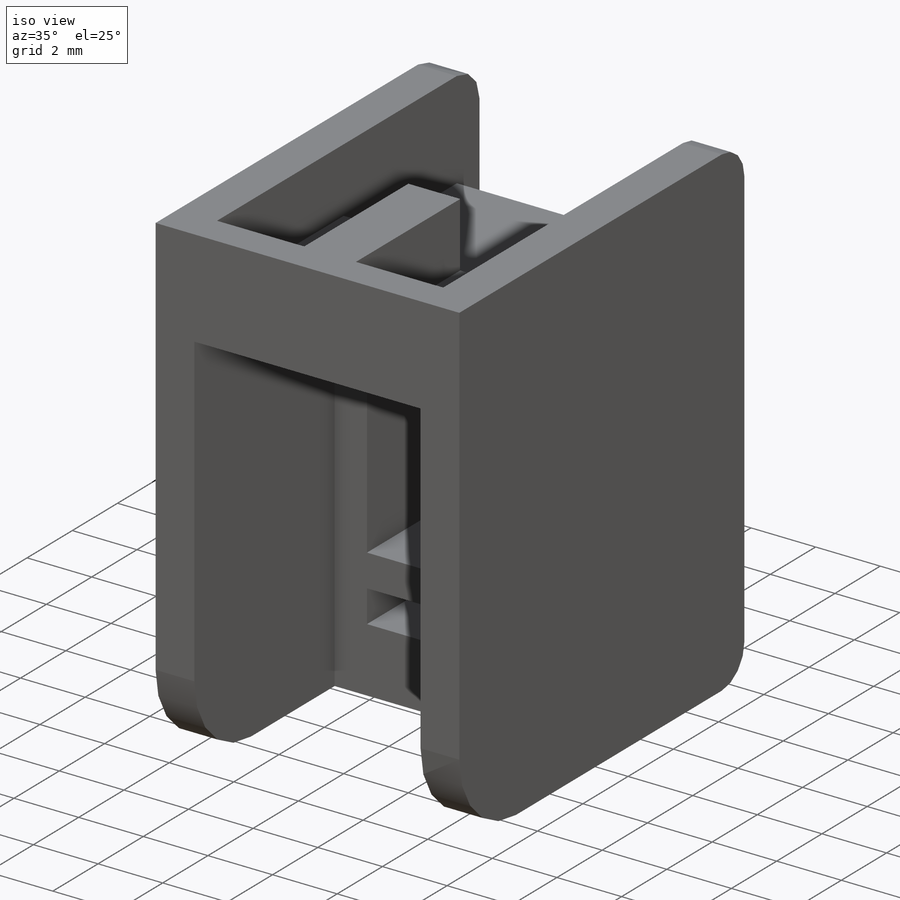
[diagram: iso view]
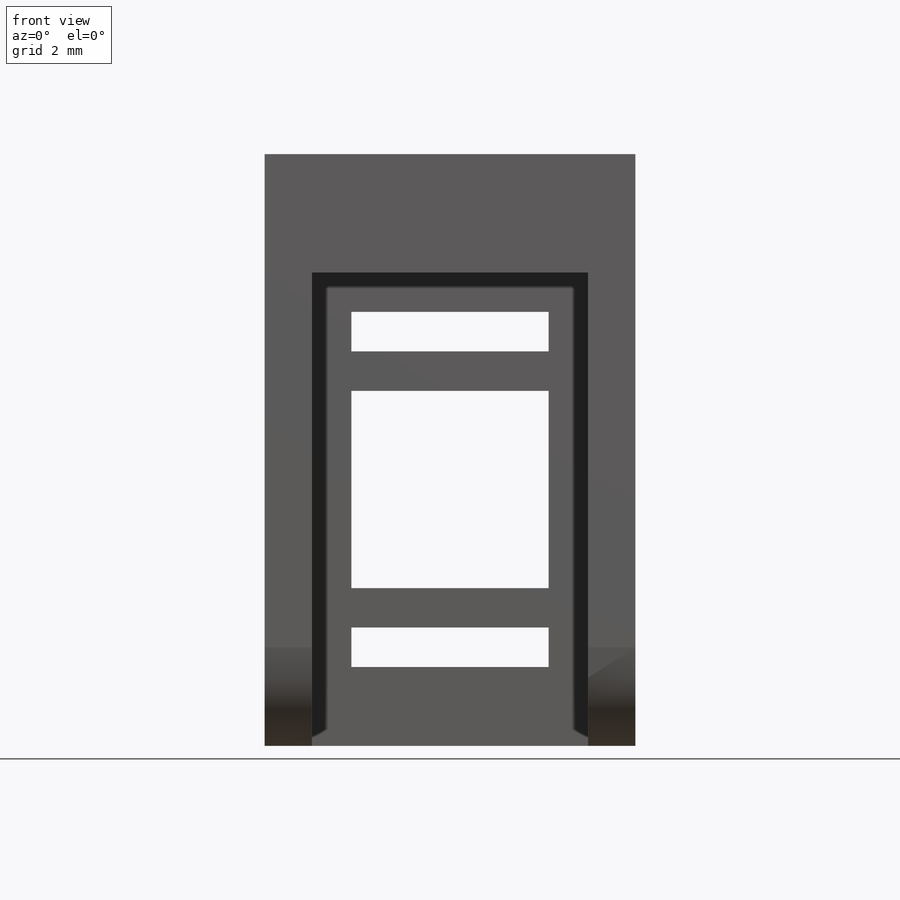
[diagram: front view]
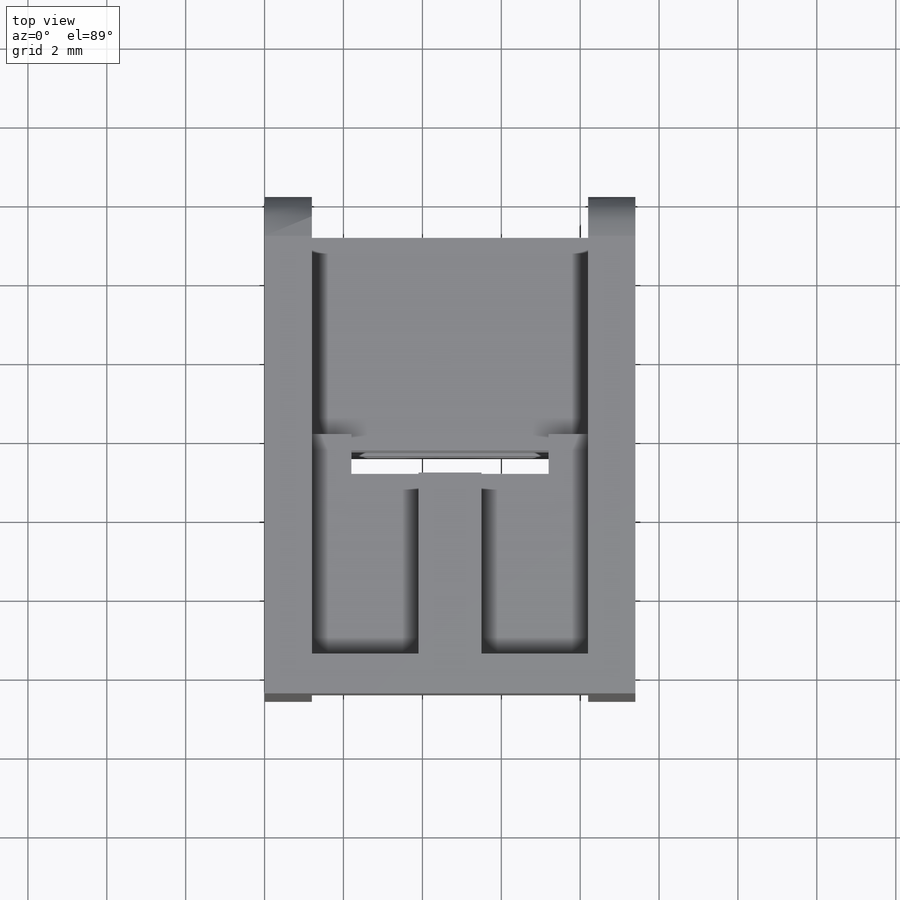
[diagram: top view]
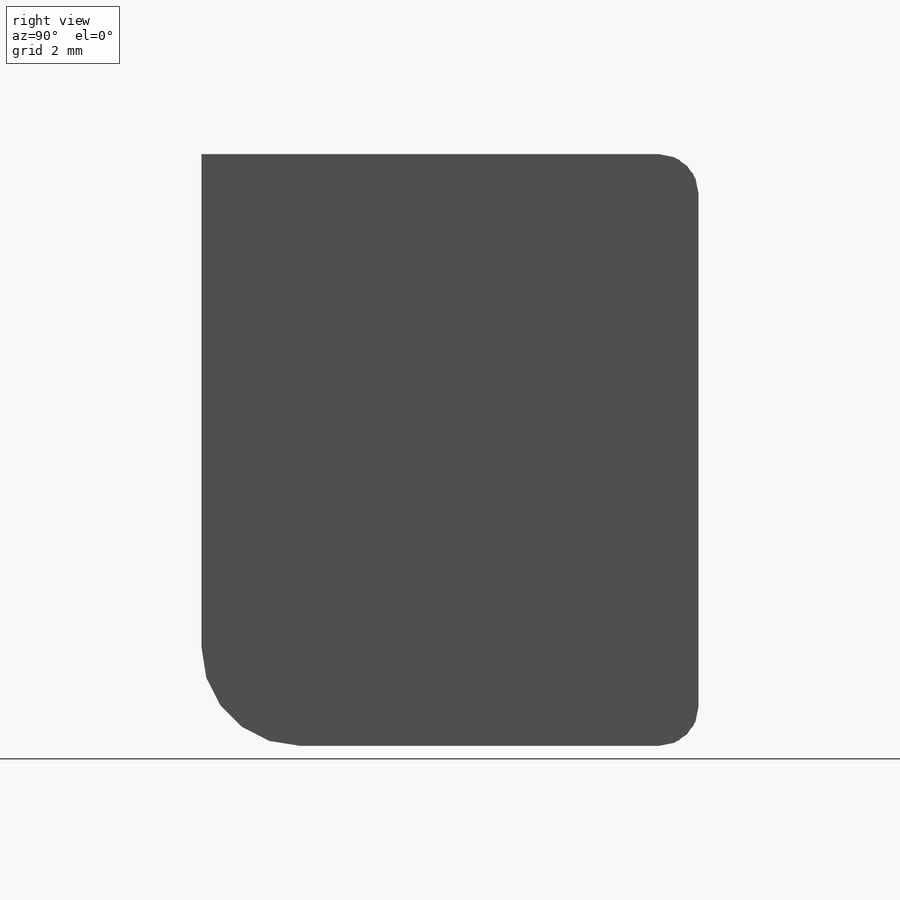
[diagram: right view]
SOLIDWORKS PART (.sldprt)
format: sldprt  version: not decoded by parser v0  size: 269,312 bytes
history: native  units: mm
features: sketch x7, cut_extrude x5, fillet x4, extrude x2, material x1 (+12 scaffold rows collapsed)
feature tree (31):
  scaffold x12  (default folders/planes/origin — collapsed)
  material  "Material <not specified>"
  sketch  "Sketch1"  dims[D1=8.2mm D2=15.0mm D3=5.0mm D4=5.0mm D5=4.0mm D6=2.2mm D7=1.0mm D8=2.0mm D9=1.0mm D10=1.0mm]
  extrude  "Base-Extrude"  Depth=12.6mm
  sketch  "Sketch2"  dims[D1=1.2mm D2=3.0mm]
  cut_extrude  "Cut-Extrude1"  Depth=6.2mm
  sketch  "Sketch3"  dims[D1=1.2mm D2=3.0mm]
  cut_extrude  "Cut-Extrude2"  Depth=1mm
  sketch  "Sketch4"
  cut_extrude  "Cut-Extrude3"  Depth=6mm
  sketch  "Sketch5"  dims[D1=1.0mm D2=5.0mm]
  cut_extrude  "Cut-Extrude4"  Depth=1mm
  sketch  "Sketch7"  dims[D1=2.7mm D2=2.7mm D3=2.0mm D4=2.0mm]
  cut_extrude  "Cut-Extrude5"  Depth=1mm
  fillet  "Fillet1"  Radius=1mm
  fillet  "Fillet2"  Radius=2.5mm
  sketch  "Sketch8"
  extrude  "Boss-Extrude1"  Depth=1.2mm
  fillet  "Fillet3"  Radius=2.5mm
  fillet  "Fillet4"  Radius=1mm
decode coverage: 16 of 18 modeling features carry decoded parameters
note: suppression state not decoded; provenance and decode notes live in map.json
